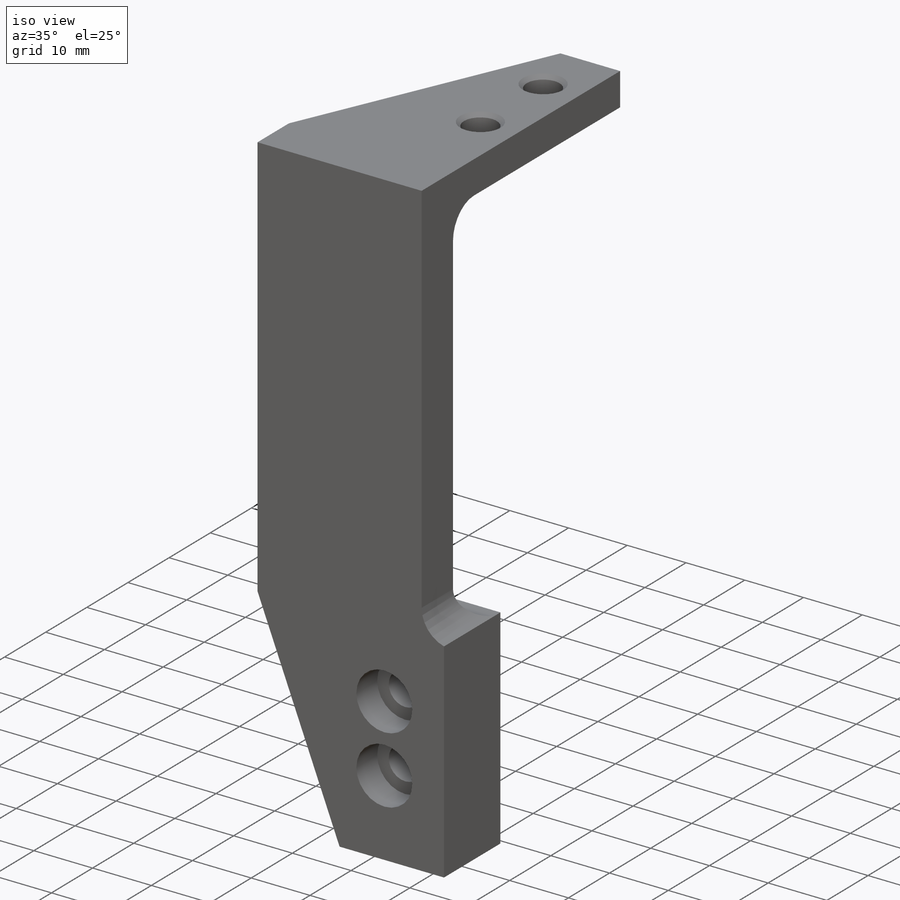
[diagram: iso view]
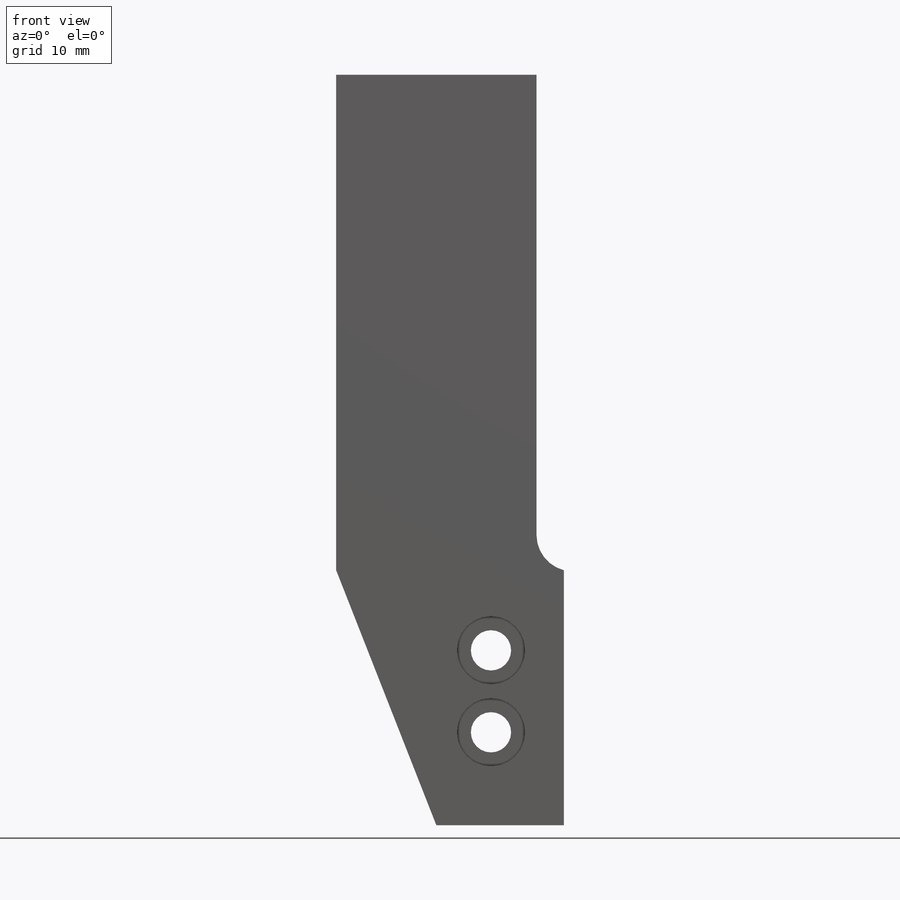
[diagram: front view]
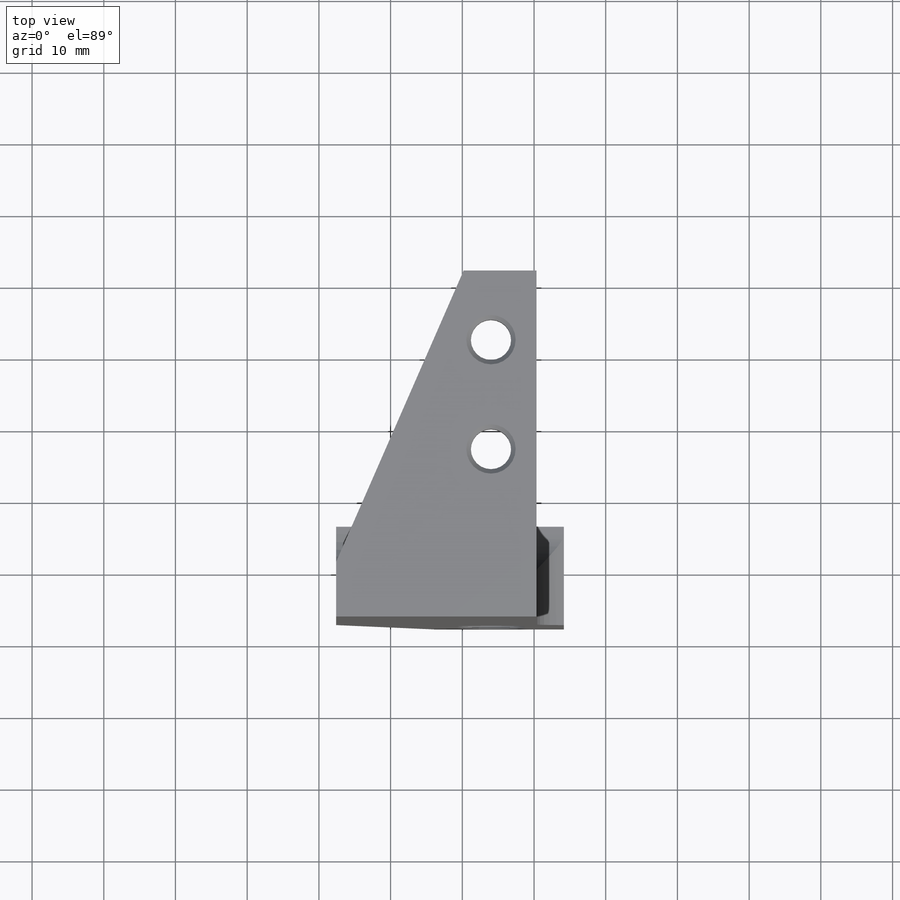
[diagram: top view]
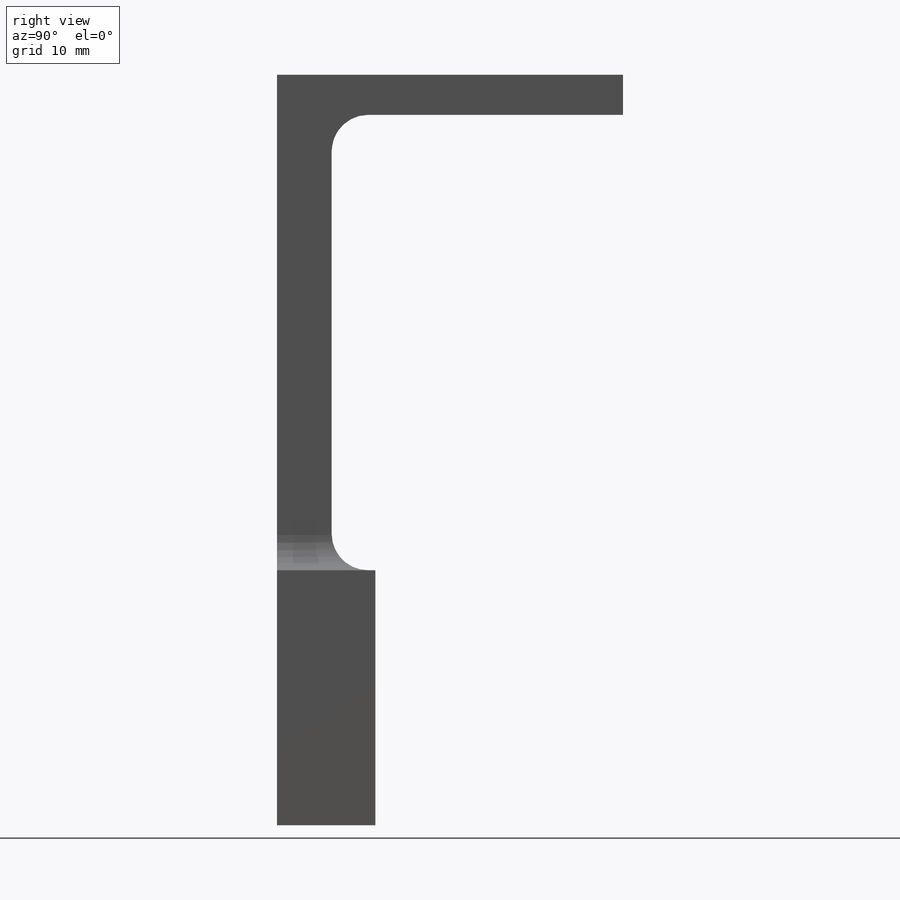
[diagram: right view]
SOLIDWORKS PART (.sldprt)
format: sldprt  version: not decoded by parser v0  size: 314,880 bytes
history: native  units: mm
features: sketch x8, extrude x4, hole x2, fillet x2, material x1 (+14 scaffold rows collapsed)
feature tree (31):
  scaffold x14  (default folders/planes/origin — collapsed)
  material  "COPPER"
  sketch  "Sketch1"  dims[D1=69.088mm D2=27.94mm D3=~49.65241mm D4=~32.293193mm]
  extrude  "Extrude1"  Depth=7.62mm
  sketch  "Sketch2"  dims[D1=10.16mm D2=40.64mm]
  extrude  "Extrude2"  Depth=5.588mm
  hole  "#10 Clearance Hole2"  Diameter=5.6134mm Depth=69.088025mm
  sketch  "3DSketch1"  dims[c1.D1=9.652mm c1.D2=15.24mm c1.D3=5.08mm c1.D4=5.08mm c2.D3=6.35mm]
  sketch  "Sketch3"  dims[hole-wizard template sketch: 54 standard entries collapsed; hole parameters kept: c17.Thru Hole Dia.=5.6134mm c17.Thru Hole Depth=~69.088025mm c17.Near C'Sink Dia.=6.8834mm c17.D4=~3.666174mm c17.Near C'Sink Angle=90.0deg]
  sketch  "Sketch19"  dims[c1.D1=13.97mm c1.D2=35.56mm c2.D1=13.97mm]
  extrude  "Extrude12"  Depth=13.716mm
  sketch  "Sketch23"
  extrude  "Extrude15"  Depth=3.81mm
  fillet  "Fillet4"  Radius=5.08mm
  hole  "CBORE for #10 Socket Head Cap Screw2"  Diameter=5.6134mm Depth=48.26mm
  sketch  "3DSketch2"  dims[c1.D1=~11.877858mm c1.D2=12.7mm c2.D2=~13.42368mm c2.D3=12.7mm c2.D1=~13.361426mm c2.D4=12.7mm c3.D2=~10.566096mm c3.D1=10.16mm c3.D3=~4.946699mm c4.D1=8.89mm c5.D1=12.954mm c5.D2=11.43mm c5.D3=~8.223997mm c5.D4=6.35mm c6.D3=6.35mm]
  sketch  "Sketch7"  dims[hole-wizard template sketch: 42 standard entries collapsed; hole parameters kept: c12.Thru Hole Depth=48.26mm c12.C'Bore Dia.=9.525mm c12.C'Bore Depth=5.08mm]
  fillet  "Fillet7"  Radius=5.08mm
decode coverage: 15 of 16 modeling features carry decoded parameters
note: ~ marks probable driven/reference dimensions
note: suppression state not decoded; provenance and decode notes live in map.json
